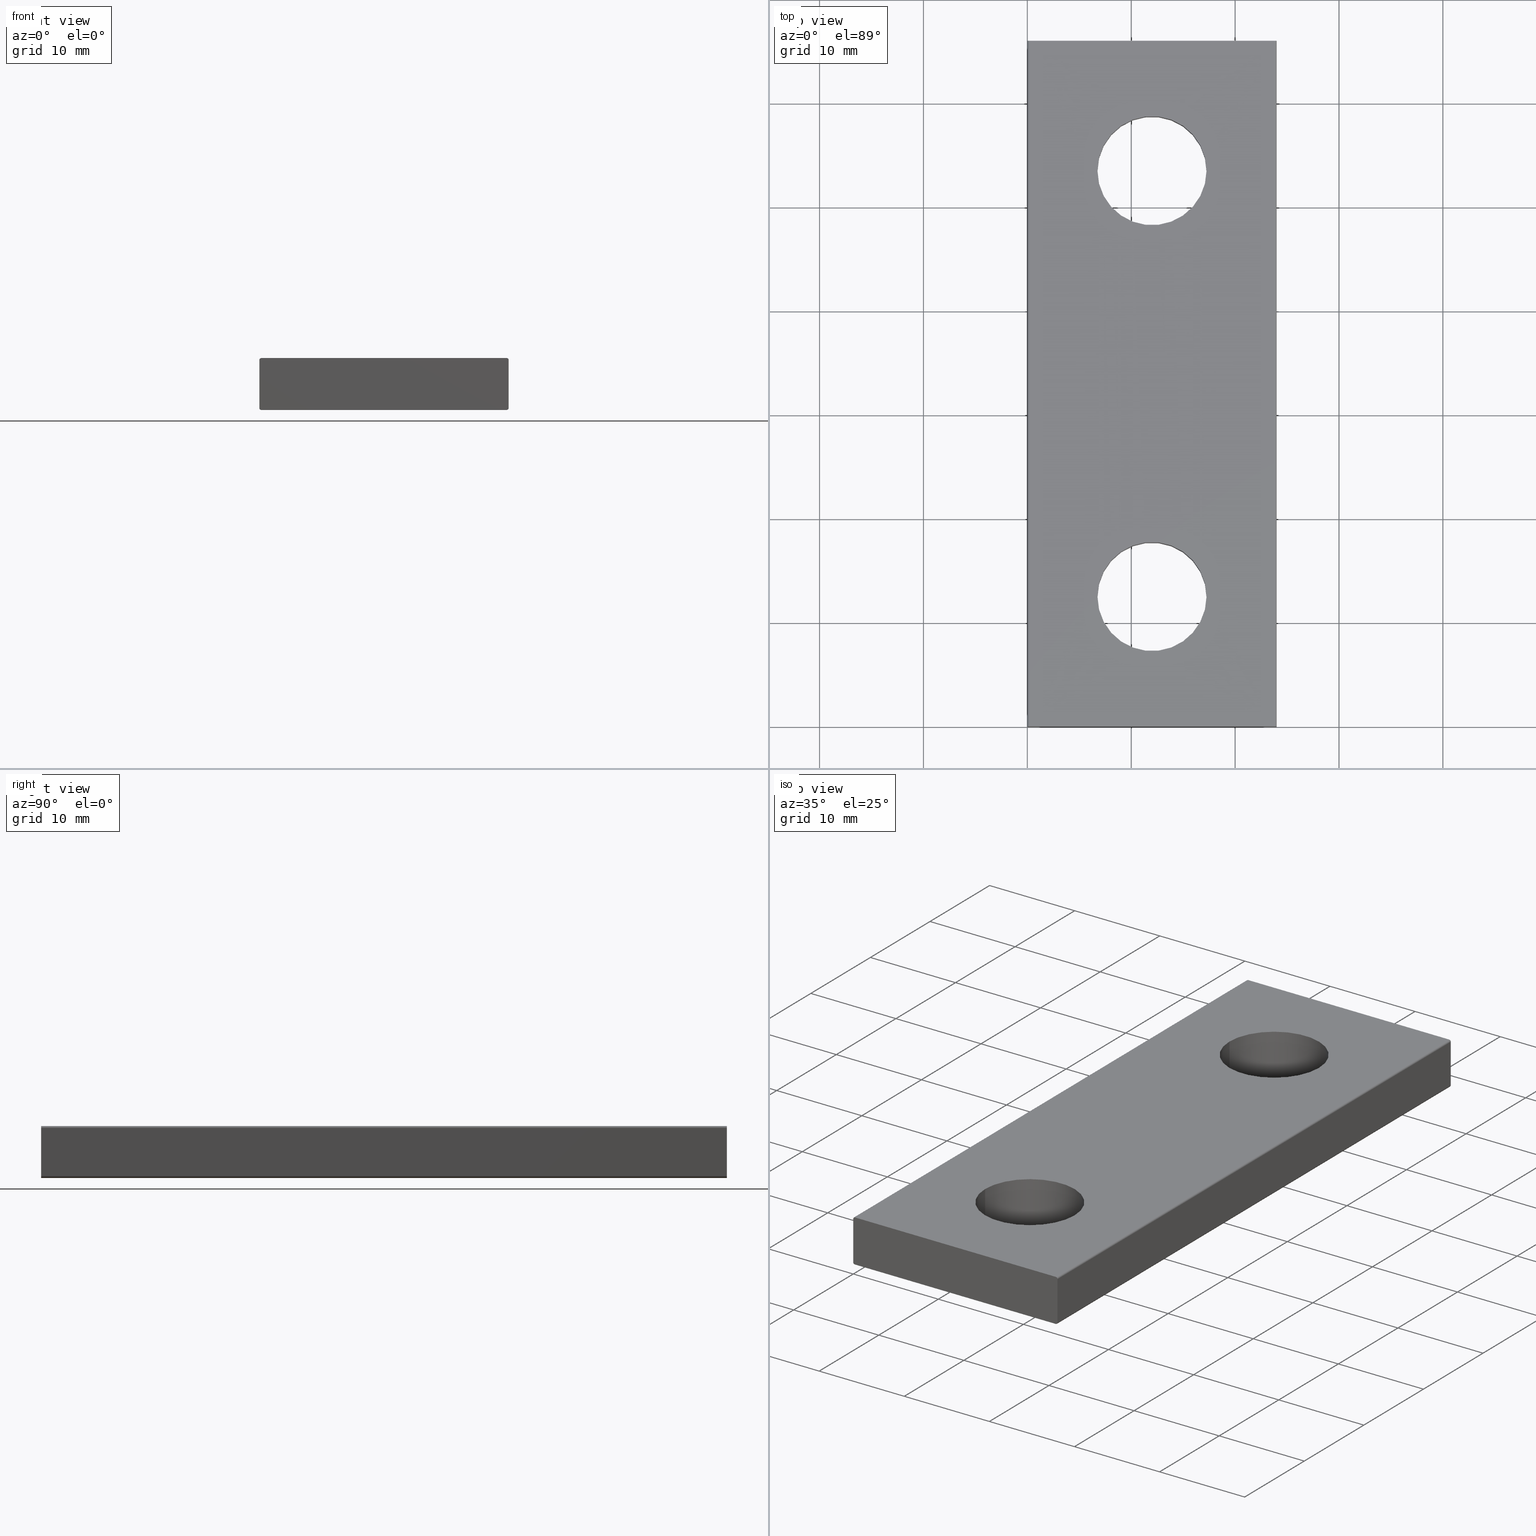
[diagram: canonical four-view strip — front | top / right | iso, engineering-drawing reading convention]
A machine part, canonical four-view strip (front | top / right | iso — engineering-drawing reading convention). The complete STEP part file that produces these views, byte-faithful:
ISO-10303-21;
HEADER;
/* Generated by software containing ST-Developer
 * from STEP Tools, Inc. (www.steptools.com) 
 */
/* OPTION: strings as raw bytes, not using required /X/ escapes */

FILE_DESCRIPTION(
/* description */ ('Unknown'),
/* implementation_level */ '2;1');

FILE_NAME(
/* name */ 'BS10-VB2-1Y-00A(H)-E',
/* time_stamp */ '2022-03-06T16:40:03+08:00',
/* author */ ('Unknown'),
/* organization */ ('Unknown'),
/* preprocessor_version */ 'ST-DEVELOPER v16.7',
/* originating_system */ 'Solid Edge',
/* authorisation */ 'Unknown');

FILE_SCHEMA (('AUTOMOTIVE_DESIGN {1 0 10303 214 3 1 1}'));
ENDSEC;

DATA;
#10=PROPERTY_DEFINITION_REPRESENTATION(#14,#12);
#11=PROPERTY_DEFINITION_REPRESENTATION(#15,#13);
#12=REPRESENTATION('',(#16),#471);
#13=REPRESENTATION('',(#17),#471);
#14=PROPERTY_DEFINITION('pmi validation property','',#476);
#15=PROPERTY_DEFINITION('pmi validation property','',#476);
#16=VALUE_REPRESENTATION_ITEM('number of annotations',COUNT_MEASURE(0.));
#17=VALUE_REPRESENTATION_ITEM('number of views',COUNT_MEASURE(0.));
#18=SHAPE_REPRESENTATION_RELATIONSHIP('','',#317,#19);
#19=ADVANCED_BREP_SHAPE_REPRESENTATION('',(#315),#471);
#20=PLANE('',#334);
#21=PLANE('',#335);
#22=PLANE('',#336);
#23=PLANE('',#337);
#24=PLANE('',#341);
#25=PLANE('',#342);
#26=LINE('',#414,#42);
#27=LINE('',#418,#43);
#28=LINE('',#423,#44);
#29=LINE('',#427,#45);
#30=LINE('',#432,#46);
#31=LINE('',#436,#47);
#32=LINE('',#441,#48);
#33=LINE('',#445,#49);
#34=LINE('',#452,#50);
#35=LINE('',#453,#51);
#36=LINE('',#454,#52);
#37=LINE('',#455,#53);
#38=LINE('',#457,#54);
#39=LINE('',#459,#55);
#40=LINE('',#460,#56);
#41=LINE('',#461,#57);
#42=VECTOR('',#349,1000.);
#43=VECTOR('',#352,1000.);
#44=VECTOR('',#357,1000.);
#45=VECTOR('',#360,1000.);
#46=VECTOR('',#365,1000.);
#47=VECTOR('',#368,1000.);
#48=VECTOR('',#373,1000.);
#49=VECTOR('',#376,1000.);
#50=VECTOR('',#385,1000.);
#51=VECTOR('',#386,1000.);
#52=VECTOR('',#387,1000.);
#53=VECTOR('',#388,1000.);
#54=VECTOR('',#391,1000.);
#55=VECTOR('',#394,1000.);
#56=VECTOR('',#395,1000.);
#57=VECTOR('',#396,1000.);
#58=ORIENTED_EDGE('',*,*,#114,.F.);
#59=ORIENTED_EDGE('',*,*,#115,.T.);
#60=ORIENTED_EDGE('',*,*,#116,.F.);
#61=ORIENTED_EDGE('',*,*,#117,.F.);
#62=ORIENTED_EDGE('',*,*,#118,.F.);
#63=ORIENTED_EDGE('',*,*,#119,.T.);
#64=ORIENTED_EDGE('',*,*,#120,.F.);
#65=ORIENTED_EDGE('',*,*,#121,.F.);
#66=ORIENTED_EDGE('',*,*,#122,.F.);
#67=ORIENTED_EDGE('',*,*,#123,.T.);
#68=ORIENTED_EDGE('',*,*,#124,.F.);
#69=ORIENTED_EDGE('',*,*,#125,.F.);
#70=ORIENTED_EDGE('',*,*,#126,.F.);
#71=ORIENTED_EDGE('',*,*,#127,.T.);
#72=ORIENTED_EDGE('',*,*,#128,.F.);
#73=ORIENTED_EDGE('',*,*,#129,.F.);
#74=ORIENTED_EDGE('',*,*,#130,.F.);
#75=ORIENTED_EDGE('',*,*,#131,.T.);
#76=ORIENTED_EDGE('',*,*,#132,.T.);
#77=ORIENTED_EDGE('',*,*,#114,.T.);
#78=ORIENTED_EDGE('',*,*,#133,.T.);
#79=ORIENTED_EDGE('',*,*,#124,.T.);
#80=ORIENTED_EDGE('',*,*,#134,.F.);
#81=ORIENTED_EDGE('',*,*,#120,.T.);
#82=ORIENTED_EDGE('',*,*,#135,.F.);
#83=ORIENTED_EDGE('',*,*,#126,.T.);
#84=ORIENTED_EDGE('',*,*,#136,.T.);
#85=ORIENTED_EDGE('',*,*,#115,.F.);
#86=ORIENTED_EDGE('',*,*,#132,.F.);
#87=ORIENTED_EDGE('',*,*,#129,.T.);
#88=ORIENTED_EDGE('',*,*,#137,.T.);
#89=ORIENTED_EDGE('',*,*,#116,.T.);
#90=ORIENTED_EDGE('',*,*,#136,.F.);
#91=ORIENTED_EDGE('',*,*,#128,.T.);
#92=ORIENTED_EDGE('',*,*,#138,.F.);
#93=ORIENTED_EDGE('',*,*,#118,.T.);
#94=ORIENTED_EDGE('',*,*,#139,.T.);
#95=ORIENTED_EDGE('',*,*,#122,.T.);
#96=ORIENTED_EDGE('',*,*,#139,.F.);
#97=ORIENTED_EDGE('',*,*,#121,.T.);
#98=ORIENTED_EDGE('',*,*,#134,.T.);
#99=ORIENTED_EDGE('',*,*,#123,.F.);
#100=ORIENTED_EDGE('',*,*,#140,.F.);
#101=ORIENTED_EDGE('',*,*,#141,.T.);
#102=ORIENTED_EDGE('',*,*,#141,.F.);
#103=ORIENTED_EDGE('',*,*,#131,.F.);
#104=ORIENTED_EDGE('',*,*,#133,.F.);
#105=ORIENTED_EDGE('',*,*,#117,.T.);
#106=ORIENTED_EDGE('',*,*,#137,.F.);
#107=ORIENTED_EDGE('',*,*,#125,.T.);
#108=ORIENTED_EDGE('',*,*,#140,.T.);
#109=ORIENTED_EDGE('',*,*,#130,.T.);
#110=ORIENTED_EDGE('',*,*,#135,.T.);
#111=ORIENTED_EDGE('',*,*,#119,.F.);
#112=ORIENTED_EDGE('',*,*,#138,.T.);
#113=ORIENTED_EDGE('',*,*,#127,.F.);
#114=EDGE_CURVE('',#142,#143,#162,.T.);
#115=EDGE_CURVE('',#142,#144,#26,.T.);
#116=EDGE_CURVE('',#145,#144,#163,.T.);
#117=EDGE_CURVE('',#143,#145,#27,.T.);
#118=EDGE_CURVE('',#146,#147,#164,.T.);
#119=EDGE_CURVE('',#146,#148,#28,.T.);
#120=EDGE_CURVE('',#149,#148,#165,.T.);
#121=EDGE_CURVE('',#147,#149,#29,.T.);
#122=EDGE_CURVE('',#150,#151,#166,.T.);
#123=EDGE_CURVE('',#150,#152,#30,.T.);
#124=EDGE_CURVE('',#153,#152,#167,.T.);
#125=EDGE_CURVE('',#151,#153,#31,.T.);
#126=EDGE_CURVE('',#154,#155,#168,.T.);
#127=EDGE_CURVE('',#154,#156,#32,.T.);
#128=EDGE_CURVE('',#157,#156,#169,.T.);
#129=EDGE_CURVE('',#155,#157,#33,.T.);
#130=EDGE_CURVE('',#158,#158,#170,.T.);
#131=EDGE_CURVE('',#159,#159,#171,.T.);
#132=EDGE_CURVE('',#155,#142,#34,.T.);
#133=EDGE_CURVE('',#143,#153,#35,.T.);
#134=EDGE_CURVE('',#149,#152,#36,.T.);
#135=EDGE_CURVE('',#154,#148,#37,.T.);
#136=EDGE_CURVE('',#157,#144,#38,.T.);
#137=EDGE_CURVE('',#151,#145,#39,.T.);
#138=EDGE_CURVE('',#146,#156,#40,.T.);
#139=EDGE_CURVE('',#147,#150,#41,.T.);
#140=EDGE_CURVE('',#160,#160,#172,.T.);
#141=EDGE_CURVE('',#161,#161,#173,.T.);
#142=VERTEX_POINT('',#412);
#143=VERTEX_POINT('',#413);
#144=VERTEX_POINT('',#415);
#145=VERTEX_POINT('',#417);
#146=VERTEX_POINT('',#421);
#147=VERTEX_POINT('',#422);
#148=VERTEX_POINT('',#424);
#149=VERTEX_POINT('',#426);
#150=VERTEX_POINT('',#430);
#151=VERTEX_POINT('',#431);
#152=VERTEX_POINT('',#433);
#153=VERTEX_POINT('',#435);
#154=VERTEX_POINT('',#439);
#155=VERTEX_POINT('',#440);
#156=VERTEX_POINT('',#442);
#157=VERTEX_POINT('',#444);
#158=VERTEX_POINT('',#448);
#159=VERTEX_POINT('',#450);
#160=VERTEX_POINT('',#465);
#161=VERTEX_POINT('',#467);
#162=CIRCLE('',#320,0.2);
#163=CIRCLE('',#321,0.2);
#164=CIRCLE('',#323,0.2);
#165=CIRCLE('',#324,0.2);
#166=CIRCLE('',#326,0.2);
#167=CIRCLE('',#327,0.2);
#168=CIRCLE('',#329,0.2);
#169=CIRCLE('',#330,0.2);
#170=CIRCLE('',#332,5.25);
#171=CIRCLE('',#333,5.25);
#172=CIRCLE('',#339,5.25);
#173=CIRCLE('',#340,5.25);
#174=EDGE_LOOP('',(#58,#59,#60,#61));
#175=EDGE_LOOP('',(#62,#63,#64,#65));
#176=EDGE_LOOP('',(#66,#67,#68,#69));
#177=EDGE_LOOP('',(#70,#71,#72,#73));
#178=EDGE_LOOP('',(#74));
#179=EDGE_LOOP('',(#75));
#180=EDGE_LOOP('',(#76,#77,#78,#79,#80,#81,#82,#83));
#181=EDGE_LOOP('',(#84,#85,#86,#87));
#182=EDGE_LOOP('',(#88,#89,#90,#91,#92,#93,#94,#95));
#183=EDGE_LOOP('',(#96,#97,#98,#99));
#184=EDGE_LOOP('',(#100));
#185=EDGE_LOOP('',(#101));
#186=EDGE_LOOP('',(#102));
#187=EDGE_LOOP('',(#103));
#188=EDGE_LOOP('',(#104,#105,#106,#107));
#189=EDGE_LOOP('',(#108));
#190=EDGE_LOOP('',(#109));
#191=EDGE_LOOP('',(#110,#111,#112,#113));
#192=FACE_BOUND('',#174,.T.);
#193=FACE_BOUND('',#175,.T.);
#194=FACE_BOUND('',#176,.T.);
#195=FACE_BOUND('',#177,.T.);
#196=FACE_BOUND('',#178,.T.);
#197=FACE_BOUND('',#179,.T.);
#198=FACE_BOUND('',#180,.T.);
#199=FACE_BOUND('',#181,.T.);
#200=FACE_BOUND('',#182,.T.);
#201=FACE_BOUND('',#183,.T.);
#202=FACE_BOUND('',#184,.T.);
#203=FACE_BOUND('',#185,.T.);
#204=FACE_BOUND('',#186,.T.);
#205=FACE_BOUND('',#187,.T.);
#206=FACE_BOUND('',#188,.T.);
#207=FACE_BOUND('',#189,.T.);
#208=FACE_BOUND('',#190,.T.);
#209=FACE_BOUND('',#191,.T.);
#210=CYLINDRICAL_SURFACE('',#319,0.2);
#211=CYLINDRICAL_SURFACE('',#322,0.2);
#212=CYLINDRICAL_SURFACE('',#325,0.2);
#213=CYLINDRICAL_SURFACE('',#328,0.2);
#214=CYLINDRICAL_SURFACE('',#331,5.25);
#215=CYLINDRICAL_SURFACE('',#338,5.25);
#216=STYLED_ITEM('',(#228),#302);
#217=STYLED_ITEM('',(#229),#303);
#218=STYLED_ITEM('',(#230),#304);
#219=STYLED_ITEM('',(#231),#305);
#220=STYLED_ITEM('',(#232),#306);
#221=STYLED_ITEM('',(#233),#307);
#222=STYLED_ITEM('',(#234),#308);
#223=STYLED_ITEM('',(#235),#309);
#224=STYLED_ITEM('',(#236),#310);
#225=STYLED_ITEM('',(#237),#311);
#226=STYLED_ITEM('',(#238),#312);
#227=STYLED_ITEM('',(#239),#313);
#228=PRESENTATION_STYLE_ASSIGNMENT((#240));
#229=PRESENTATION_STYLE_ASSIGNMENT((#241));
#230=PRESENTATION_STYLE_ASSIGNMENT((#242));
#231=PRESENTATION_STYLE_ASSIGNMENT((#243));
#232=PRESENTATION_STYLE_ASSIGNMENT((#244));
#233=PRESENTATION_STYLE_ASSIGNMENT((#245));
#234=PRESENTATION_STYLE_ASSIGNMENT((#246));
#235=PRESENTATION_STYLE_ASSIGNMENT((#247));
#236=PRESENTATION_STYLE_ASSIGNMENT((#248));
#237=PRESENTATION_STYLE_ASSIGNMENT((#249));
#238=PRESENTATION_STYLE_ASSIGNMENT((#250));
#239=PRESENTATION_STYLE_ASSIGNMENT((#251));
#240=SURFACE_STYLE_USAGE(.BOTH.,#252);
#241=SURFACE_STYLE_USAGE(.BOTH.,#253);
#242=SURFACE_STYLE_USAGE(.BOTH.,#254);
#243=SURFACE_STYLE_USAGE(.BOTH.,#255);
#244=SURFACE_STYLE_USAGE(.BOTH.,#256);
#245=SURFACE_STYLE_USAGE(.BOTH.,#257);
#246=SURFACE_STYLE_USAGE(.BOTH.,#258);
#247=SURFACE_STYLE_USAGE(.BOTH.,#259);
#248=SURFACE_STYLE_USAGE(.BOTH.,#260);
#249=SURFACE_STYLE_USAGE(.BOTH.,#261);
#250=SURFACE_STYLE_USAGE(.BOTH.,#262);
#251=SURFACE_STYLE_USAGE(.BOTH.,#263);
#252=SURFACE_SIDE_STYLE('',(#264));
#253=SURFACE_SIDE_STYLE('',(#265));
#254=SURFACE_SIDE_STYLE('',(#266));
#255=SURFACE_SIDE_STYLE('',(#267));
#256=SURFACE_SIDE_STYLE('',(#268));
#257=SURFACE_SIDE_STYLE('',(#269));
#258=SURFACE_SIDE_STYLE('',(#270));
#259=SURFACE_SIDE_STYLE('',(#271));
#260=SURFACE_SIDE_STYLE('',(#272));
#261=SURFACE_SIDE_STYLE('',(#273));
#262=SURFACE_SIDE_STYLE('',(#274));
#263=SURFACE_SIDE_STYLE('',(#275));
#264=SURFACE_STYLE_FILL_AREA(#276);
#265=SURFACE_STYLE_FILL_AREA(#277);
#266=SURFACE_STYLE_FILL_AREA(#278);
#267=SURFACE_STYLE_FILL_AREA(#279);
#268=SURFACE_STYLE_FILL_AREA(#280);
#269=SURFACE_STYLE_FILL_AREA(#281);
#270=SURFACE_STYLE_FILL_AREA(#282);
#271=SURFACE_STYLE_FILL_AREA(#283);
#272=SURFACE_STYLE_FILL_AREA(#284);
#273=SURFACE_STYLE_FILL_AREA(#285);
#274=SURFACE_STYLE_FILL_AREA(#286);
#275=SURFACE_STYLE_FILL_AREA(#287);
#276=FILL_AREA_STYLE('',(#288));
#277=FILL_AREA_STYLE('',(#289));
#278=FILL_AREA_STYLE('',(#290));
#279=FILL_AREA_STYLE('',(#291));
#280=FILL_AREA_STYLE('',(#292));
#281=FILL_AREA_STYLE('',(#293));
#282=FILL_AREA_STYLE('',(#294));
#283=FILL_AREA_STYLE('',(#295));
#284=FILL_AREA_STYLE('',(#296));
#285=FILL_AREA_STYLE('',(#297));
#286=FILL_AREA_STYLE('',(#298));
#287=FILL_AREA_STYLE('',(#299));
#288=FILL_AREA_STYLE_COLOUR('',#300);
#289=FILL_AREA_STYLE_COLOUR('',#300);
#290=FILL_AREA_STYLE_COLOUR('',#300);
#291=FILL_AREA_STYLE_COLOUR('',#300);
#292=FILL_AREA_STYLE_COLOUR('',#301);
#293=FILL_AREA_STYLE_COLOUR('',#301);
#294=FILL_AREA_STYLE_COLOUR('',#301);
#295=FILL_AREA_STYLE_COLOUR('',#301);
#296=FILL_AREA_STYLE_COLOUR('',#301);
#297=FILL_AREA_STYLE_COLOUR('',#301);
#298=FILL_AREA_STYLE_COLOUR('',#301);
#299=FILL_AREA_STYLE_COLOUR('',#301);
#300=COLOUR_RGB('',0.439215689897537,0.501960813999176,0.501960813999176);
#301=COLOUR_RGB('',0.690196096897125,0.690196096897125,0.627451002597809);
#302=ADVANCED_FACE('',(#192),#210,.T.);
#303=ADVANCED_FACE('',(#193),#211,.T.);
#304=ADVANCED_FACE('',(#194),#212,.T.);
#305=ADVANCED_FACE('',(#195),#213,.T.);
#306=ADVANCED_FACE('',(#196,#197),#214,.F.);
#307=ADVANCED_FACE('',(#198),#20,.T.);
#308=ADVANCED_FACE('',(#199),#21,.T.);
#309=ADVANCED_FACE('',(#200),#22,.T.);
#310=ADVANCED_FACE('',(#201),#23,.T.);
#311=ADVANCED_FACE('',(#202,#203),#215,.F.);
#312=ADVANCED_FACE('',(#204,#205,#206),#24,.T.);
#313=ADVANCED_FACE('',(#207,#208,#209),#25,.F.);
#314=CLOSED_SHELL('',(#302,#303,#304,#305,#306,#307,#308,#309,#310,#311,
#312,#313));
#315=MANIFOLD_SOLID_BREP('',#314);
#316=SHAPE_DEFINITION_REPRESENTATION(#476,#317);
#317=SHAPE_REPRESENTATION('200076558',(#318),#471);
#318=AXIS2_PLACEMENT_3D('',#409,#343,#344);
#319=AXIS2_PLACEMENT_3D('',#410,#345,#346);
#320=AXIS2_PLACEMENT_3D('',#411,#347,#348);
#321=AXIS2_PLACEMENT_3D('',#416,#350,#351);
#322=AXIS2_PLACEMENT_3D('',#419,#353,#354);
#323=AXIS2_PLACEMENT_3D('',#420,#355,#356);
#324=AXIS2_PLACEMENT_3D('',#425,#358,#359);
#325=AXIS2_PLACEMENT_3D('',#428,#361,#362);
#326=AXIS2_PLACEMENT_3D('',#429,#363,#364);
#327=AXIS2_PLACEMENT_3D('',#434,#366,#367);
#328=AXIS2_PLACEMENT_3D('',#437,#369,#370);
#329=AXIS2_PLACEMENT_3D('',#438,#371,#372);
#330=AXIS2_PLACEMENT_3D('',#443,#374,#375);
#331=AXIS2_PLACEMENT_3D('',#446,#377,#378);
#332=AXIS2_PLACEMENT_3D('',#447,#379,#380);
#333=AXIS2_PLACEMENT_3D('',#449,#381,#382);
#334=AXIS2_PLACEMENT_3D('',#451,#383,#384);
#335=AXIS2_PLACEMENT_3D('',#456,#389,#390);
#336=AXIS2_PLACEMENT_3D('',#458,#392,#393);
#337=AXIS2_PLACEMENT_3D('',#462,#397,#398);
#338=AXIS2_PLACEMENT_3D('',#463,#399,#400);
#339=AXIS2_PLACEMENT_3D('',#464,#401,#402);
#340=AXIS2_PLACEMENT_3D('',#466,#403,#404);
#341=AXIS2_PLACEMENT_3D('',#468,#405,#406);
#342=AXIS2_PLACEMENT_3D('',#469,#407,#408);
#343=DIRECTION('',(0.,0.,1.));
#344=DIRECTION('',(1.,0.,0.));
#345=DIRECTION('',(-1.31371731030452E-46,-1.,-1.49186218934005E-16));
#346=DIRECTION('',(0.,1.49186218934005E-16,-1.));
#347=DIRECTION('',(0.,1.,1.49186218934005E-16));
#348=DIRECTION('',(0.,-1.49186218934005E-16,1.));
#349=DIRECTION('',(-1.31371731030452E-46,-1.,-1.49186218934005E-16));
#350=DIRECTION('',(0.,-1.,-1.49186218934005E-16));
#351=DIRECTION('',(0.,1.49186218934005E-16,-1.));
#352=DIRECTION('',(-1.31371731030452E-46,-1.,-1.49186218934005E-16));
#353=DIRECTION('',(-1.31371731030452E-46,-1.,-1.49186218934005E-16));
#354=DIRECTION('',(0.,1.49186218934005E-16,-1.));
#355=DIRECTION('',(0.,-1.,-1.49186218934005E-16));
#356=DIRECTION('',(0.,1.49186218934005E-16,-1.));
#357=DIRECTION('',(1.31371731030452E-46,1.,1.49186218934005E-16));
#358=DIRECTION('',(0.,1.,1.49186218934005E-16));
#359=DIRECTION('',(0.,-1.49186218934005E-16,1.));
#360=DIRECTION('',(1.31371731030452E-46,1.,1.49186218934005E-16));
#361=DIRECTION('',(1.31371731030452E-46,1.,1.49186218934005E-16));
#362=DIRECTION('',(0.,-1.49186218934005E-16,1.));
#363=DIRECTION('',(0.,-1.,-1.49186218934005E-16));
#364=DIRECTION('',(0.,1.49186218934005E-16,-1.));
#365=DIRECTION('',(1.31371731030452E-46,1.,1.49186218934005E-16));
#366=DIRECTION('',(0.,1.,1.49186218934005E-16));
#367=DIRECTION('',(0.,-1.49186218934005E-16,1.));
#368=DIRECTION('',(1.31371731030452E-46,1.,1.49186218934005E-16));
#369=DIRECTION('',(1.31371731030452E-46,1.,1.49186218934005E-16));
#370=DIRECTION('',(0.,-1.49186218934005E-16,1.));
#371=DIRECTION('',(0.,1.,1.49186218934005E-16));
#372=DIRECTION('',(0.,-1.49186218934005E-16,1.));
#373=DIRECTION('',(-1.31371731030452E-46,-1.,-1.49186218934005E-16));
#374=DIRECTION('',(0.,-1.,-1.49186218934005E-16));
#375=DIRECTION('',(0.,1.49186218934005E-16,-1.));
#376=DIRECTION('',(-1.31371731030452E-46,-1.,-1.49186218934005E-16));
#377=DIRECTION('',(1.49186218934005E-16,1.49186218934005E-16,-1.));
#378=DIRECTION('',(-1.,2.2256527919825E-32,-1.49186218934005E-16));
#379=DIRECTION('',(1.49186218934005E-16,1.49186218934005E-16,-1.));
#380=DIRECTION('',(-1.,2.2256527919825E-32,-1.49186218934005E-16));
#381=DIRECTION('',(1.49186218934005E-16,1.49186218934005E-16,-1.));
#382=DIRECTION('',(-1.,2.2256527919825E-32,-1.49186218934005E-16));
#383=DIRECTION('',(0.,1.,1.49186218934005E-16));
#384=DIRECTION('',(-1.,2.2256527919825E-32,-1.49186218934005E-16));
#385=DIRECTION('',(1.49186218934005E-16,1.49186218934005E-16,-1.));
#386=DIRECTION('',(-1.,2.2256527919825E-32,-1.49186218934005E-16));
#387=DIRECTION('',(1.49186218934005E-16,1.49186218934005E-16,-1.));
#388=DIRECTION('',(-1.,2.2256527919825E-32,-1.49186218934005E-16));
#389=DIRECTION('',(1.,-2.2256527919825E-32,1.49186218934005E-16));
#390=DIRECTION('',(0.,1.,1.49186218934005E-16));
#391=DIRECTION('',(1.49186218934005E-16,1.49186218934005E-16,-1.));
#392=DIRECTION('',(0.,-1.,-1.49186218934005E-16));
#393=DIRECTION('',(1.,-2.2256527919825E-32,1.49186218934005E-16));
#394=DIRECTION('',(1.,-2.2256527919825E-32,1.49186218934005E-16));
#395=DIRECTION('',(1.,-2.2256527919825E-32,1.49186218934005E-16));
#396=DIRECTION('',(1.49186218934005E-16,1.49186218934005E-16,-1.));
#397=DIRECTION('',(-1.,2.2256527919825E-32,-1.49186218934005E-16));
#398=DIRECTION('',(0.,-1.,-1.49186218934005E-16));
#399=DIRECTION('',(1.49186218934005E-16,1.49186218934005E-16,-1.));
#400=DIRECTION('',(-1.,2.2256527919825E-32,-1.49186218934005E-16));
#401=DIRECTION('',(1.49186218934005E-16,1.49186218934005E-16,-1.));
#402=DIRECTION('',(-1.,2.2256527919825E-32,-1.49186218934005E-16));
#403=DIRECTION('',(1.49186218934005E-16,1.49186218934005E-16,-1.));
#404=DIRECTION('',(-1.,2.2256527919825E-32,-1.49186218934005E-16));
#405=DIRECTION('',(1.49186218934005E-16,1.49186218934005E-16,-1.));
#406=DIRECTION('',(-1.,2.2256527919825E-32,-1.49186218934005E-16));
#407=DIRECTION('',(1.49186218934005E-16,1.49186218934005E-16,-1.));
#408=DIRECTION('',(-1.,2.2256527919825E-32,-1.49186218934005E-16));
#409=CARTESIAN_POINT('',(0.,0.,0.));
#410=CARTESIAN_POINT('',(23.8,53.600000003813,0.199999999999744));
#411=CARTESIAN_POINT('',(23.8,66.,0.199999999999745));
#412=CARTESIAN_POINT('',(24.,66.,0.199999999999746));
#413=CARTESIAN_POINT('',(23.8,66.,-2.53387484605572E-13));
#414=CARTESIAN_POINT('',(24.,7.16093850883224E-16,0.199999999999736));
#415=CARTESIAN_POINT('',(24.,7.16093850883224E-16,0.199999999999735));
#416=CARTESIAN_POINT('',(23.8,0.,0.199999999999736));
#417=CARTESIAN_POINT('',(23.8,-5.42836715964532E-31,-2.63508763420628E-13));
#418=CARTESIAN_POINT('',(23.8,53.600000003813,-2.56489187527853E-13));
#419=CARTESIAN_POINT('',(0.2,66.09,4.79999999999974));
#420=CARTESIAN_POINT('',(0.2,0.,4.79999999999973));
#421=CARTESIAN_POINT('',(0.2,-1.75826570566617E-32,4.99999999999973));
#422=CARTESIAN_POINT('',(2.98372437868008E-17,2.98372437868008E-17,4.79999999999973));
#423=CARTESIAN_POINT('',(0.2,-2.9837243786801E-17,4.99999999999973));
#424=CARTESIAN_POINT('',(0.199999999999999,66.,4.99999999999974));
#425=CARTESIAN_POINT('',(0.2,66.,4.79999999999974));
#426=CARTESIAN_POINT('',(2.9837243786801E-17,66.,4.79999999999974));
#427=CARTESIAN_POINT('',(2.71050543121376E-17,66.,4.79999999999974));
#428=CARTESIAN_POINT('',(0.199999999999999,53.600000003813,0.19999999999974));
#429=CARTESIAN_POINT('',(0.199999999999999,0.,0.199999999999732));
#430=CARTESIAN_POINT('',(7.16093850883224E-16,7.16093850883224E-16,0.199999999999732));
#431=CARTESIAN_POINT('',(0.199999999999999,-1.75826570566617E-32,-2.6702955818747E-13));
#432=CARTESIAN_POINT('',(7.16093850883224E-16,66.09,0.199999999999741));
#433=CARTESIAN_POINT('',(7.16093850883224E-16,66.,0.199999999999742));
#434=CARTESIAN_POINT('',(0.199999999999999,66.,0.199999999999742));
#435=CARTESIAN_POINT('',(0.199999999999999,66.,-2.56908279372414E-13));
#436=CARTESIAN_POINT('',(0.199999999999999,53.600000003813,-2.60009982294695E-13));
#437=CARTESIAN_POINT('',(23.8,2.98372437868011E-17,4.79999999999974));
#438=CARTESIAN_POINT('',(23.8,66.,4.79999999999974));
#439=CARTESIAN_POINT('',(23.8,66.,4.99999999999975));
#440=CARTESIAN_POINT('',(24.,66.,4.79999999999974));
#441=CARTESIAN_POINT('',(23.8,66.,4.99999999999974));
#442=CARTESIAN_POINT('',(23.8,-5.42836715964532E-31,4.99999999999973));
#443=CARTESIAN_POINT('',(23.8,2.98372437868003E-17,4.79999999999974));
#444=CARTESIAN_POINT('',(24.,2.98372437868011E-17,4.79999999999974));
#445=CARTESIAN_POINT('',(24.,2.98372437868011E-17,4.79999999999974));
#446=CARTESIAN_POINT('',(12.,12.5,4.99999999999973));
#447=CARTESIAN_POINT('',(12.,12.5,4.99999999999973));
#448=CARTESIAN_POINT('',(6.75,12.5,4.99999999999973));
#449=CARTESIAN_POINT('',(12.,12.5,-2.67147415300428E-13));
#450=CARTESIAN_POINT('',(6.75,12.5,-2.67930642949832E-13));
#451=CARTESIAN_POINT('',(24.59,66.,4.99999999999975));
#452=CARTESIAN_POINT('',(24.,66.,4.99999999999975));
#453=CARTESIAN_POINT('',(24.59,66.,-2.53269627492614E-13));
#454=CARTESIAN_POINT('',(0.,66.,4.99999999999974));
#455=CARTESIAN_POINT('',(24.59,66.,4.99999999999975));
#456=CARTESIAN_POINT('',(24.,0.,4.99999999999974));
#457=CARTESIAN_POINT('',(24.,0.,4.99999999999974));
#458=CARTESIAN_POINT('',(-0.589999999999997,0.,4.99999999999973));
#459=CARTESIAN_POINT('',(-0.589999999999997,0.,-2.67147415300428E-13));
#460=CARTESIAN_POINT('',(-0.589999999999997,0.,4.99999999999973));
#461=CARTESIAN_POINT('',(0.,0.,4.99999999999973));
#462=CARTESIAN_POINT('',(0.,66.09,4.99999999999974));
#463=CARTESIAN_POINT('',(12.,53.5,4.99999999999974));
#464=CARTESIAN_POINT('',(12.,53.5,4.99999999999974));
#465=CARTESIAN_POINT('',(6.75,53.5,4.99999999999974));
#466=CARTESIAN_POINT('',(12.,53.5,-2.60208521396521E-13));
#467=CARTESIAN_POINT('',(6.75,53.5,-2.60991749045925E-13));
#468=CARTESIAN_POINT('',(22.125,53.600000003813,-2.56739074444567E-13));
#469=CARTESIAN_POINT('',(22.125,53.600000003813,4.99999999999974));
#470=MECHANICAL_DESIGN_GEOMETRIC_PRESENTATION_REPRESENTATION('',(#216,#217,
#218,#219,#220,#221,#222,#223,#224,#225,#226,#227),#471);
#471=(
GEOMETRIC_REPRESENTATION_CONTEXT(3)
GLOBAL_UNCERTAINTY_ASSIGNED_CONTEXT((#472))
GLOBAL_UNIT_ASSIGNED_CONTEXT((#475,#474,#473))
REPRESENTATION_CONTEXT('200076558','TOP_LEVEL_ASSEMBLY_PART')
);
#472=UNCERTAINTY_MEASURE_WITH_UNIT(LENGTH_MEASURE(0.005),#475,
'DISTANCE_ACCURACY_VALUE','Maximum Tolerance applied to model');
#473=(
NAMED_UNIT(*)
SI_UNIT($,.STERADIAN.)
SOLID_ANGLE_UNIT()
);
#474=(
NAMED_UNIT(*)
PLANE_ANGLE_UNIT()
SI_UNIT($,.RADIAN.)
);
#475=(
LENGTH_UNIT()
NAMED_UNIT(*)
SI_UNIT(.MILLI.,.METRE.)
);
#476=PRODUCT_DEFINITION_SHAPE('','',#477);
#477=PRODUCT_DEFINITION('','',#479,#478);
#478=PRODUCT_DEFINITION_CONTEXT('',#485,'design');
#479=PRODUCT_DEFINITION_FORMATION_WITH_SPECIFIED_SOURCE('','',#481,
 .NOT_KNOWN.);
#480=PRODUCT_RELATED_PRODUCT_CATEGORY('','',(#481));
#481=PRODUCT('200076558','200076558','200076558',(#483));
#482=PRODUCT_CATEGORY('','');
#483=PRODUCT_CONTEXT('',#485,'mechanical');
#484=APPLICATION_PROTOCOL_DEFINITION('international standard',
'automotive_design',2010,#485);
#485=APPLICATION_CONTEXT(
'core data for automotive mechanical design processes');
ENDSEC;
END-ISO-10303-21;
